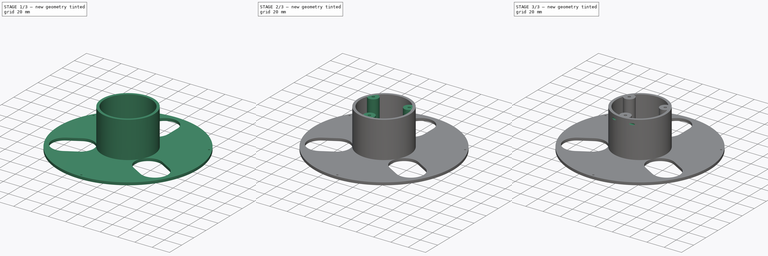
[diagram: build sequence overview — one tinted view per stage of 3, left to right]
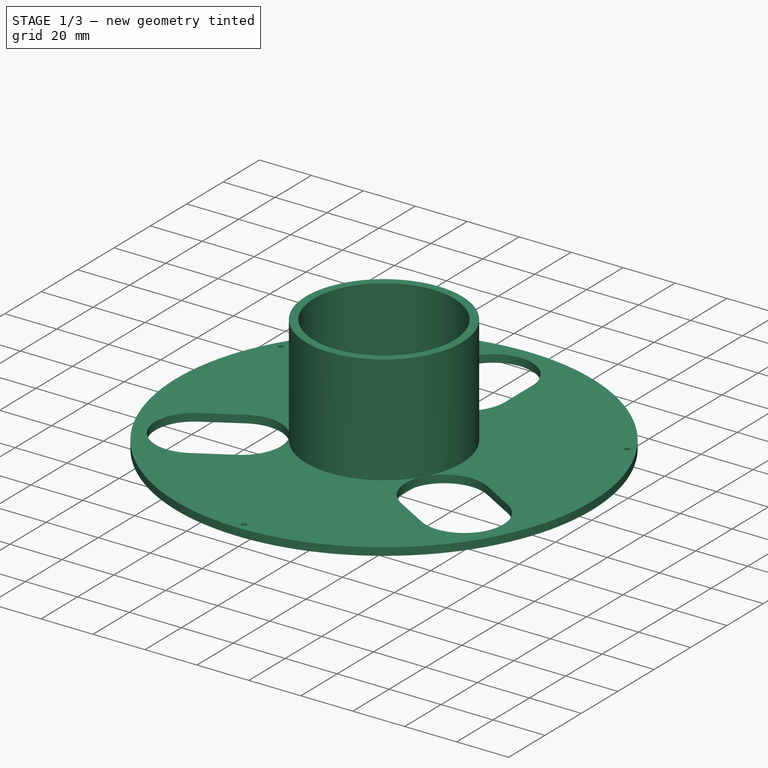
[diagram: stage 1 of 3 — iso view after this stage's code; geometry added in this stage tinted green]
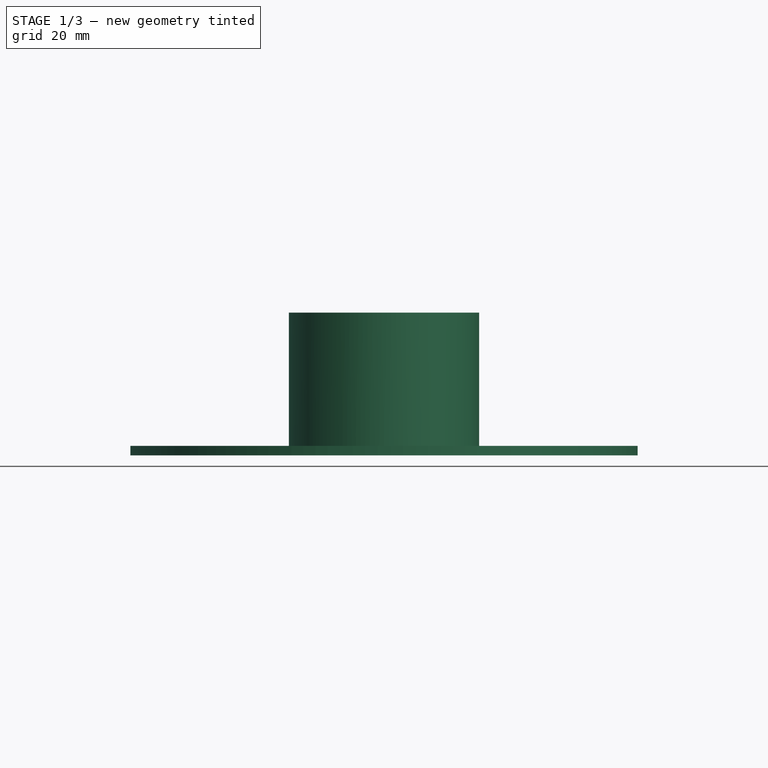
[diagram: stage 1 of 3 — front view after this stage's code; geometry added in this stage tinted green]
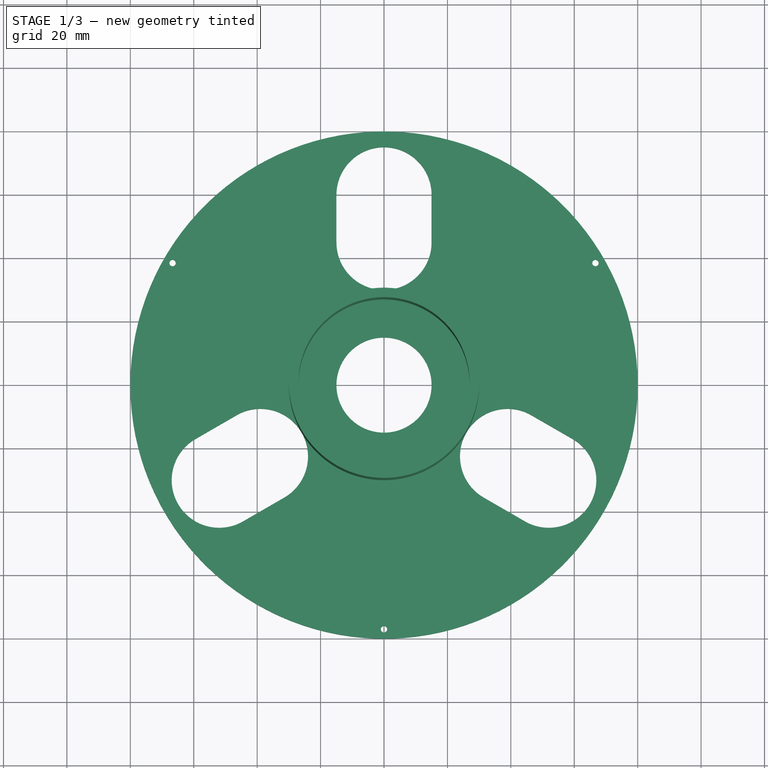
[diagram: stage 1 of 3 — top view after this stage's code; geometry added in this stage tinted green]
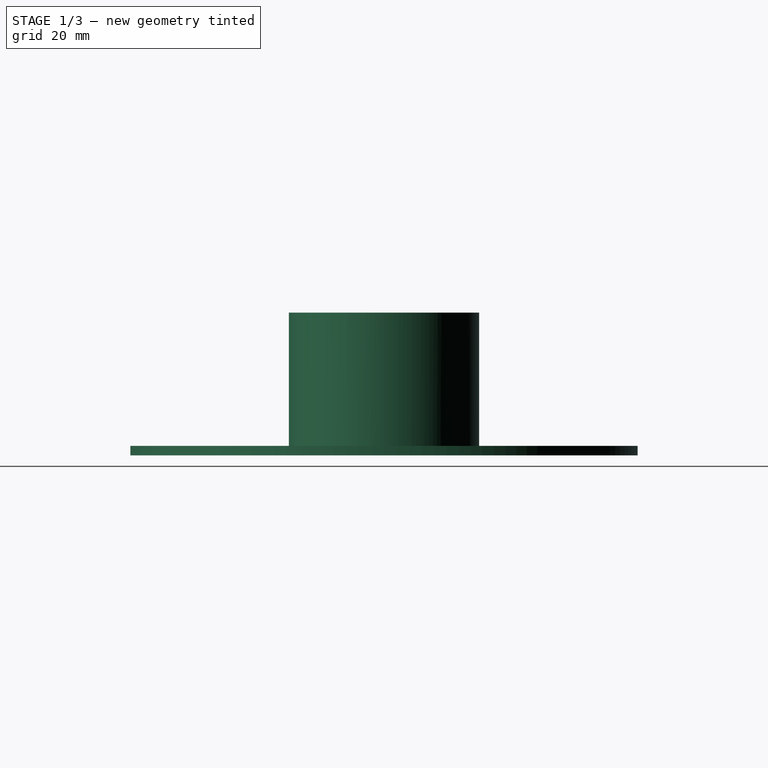
[diagram: stage 1 of 3 — right view after this stage's code; geometry added in this stage tinted green]
FCSTD DOCUMENT  (FreeCAD 0.18R14995 (Git))
Label: MiniSpoolHalf
License: All rights reserved
LicenseURL: http://en.wikipedia.org/wiki/All_rights_reserved
objects: Sketcher::SketchObject×6, PartDesign::Pad×3, PartDesign::Pocket×3, PartDesign::Body×1, App::Part×1
note: 19 computed .brp shape members not serialized (recipe doc carries the construction recipe); baked Part::Feature solids carry a one-line shape summary decoded from their .brp

FEATURE [Sketcher::SketchObject] Sketch001  label="SpoolCoreSketch"
  MapMode = 5
  Support = -> [XY_Plane001]
  sketch-geometry (2):
    g0: Circle CenterX=0 CenterY=0 CenterZ=0 NormalX=0 NormalY=0 NormalZ=1 AngleXU=0 Radius=30
    g1: Circle CenterX=0 CenterY=0 CenterZ=0 NormalX=0 NormalY=0 NormalZ=1 AngleXU=0 Radius=27
  constraints (4):
    c: Coincident(g0,g-1)
    c: Radius(g0) = 30
    c: Coincident(g1,g0)
    c: Radius(g1) = 27
FEATURE [Sketcher::SketchObject] Sketch  label="BaseSketch"
  ExternalGeometry = -> [Sketch001]
  MapMode = 5
  Support = -> [XY_Plane001]
  sketch-geometry (26):
    g0: Circle CenterX=0 CenterY=0 CenterZ=0 NormalX=0 NormalY=0 NormalZ=1 AngleXU=0 Radius=80
    g1: Circle CenterX=0 CenterY=0 CenterZ=0 NormalX=0 NormalY=0 NormalZ=1 AngleXU=0 Radius=15
    g2: LineSegment [constr] StartX=1e-12 StartY=80 StartZ=0 EndX=-69.282 EndY=-40 EndZ=0
    g3: LineSegment [constr] StartX=-69.282 StartY=-40 StartZ=0 EndX=69.282 EndY=-40 EndZ=0
    g4: LineSegment [constr] StartX=69.282 StartY=-40 StartZ=0 EndX=1e-12 EndY=80 EndZ=0
    g5: LineSegment [constr] StartX=0 StartY=0 StartZ=0 EndX=-69.282 EndY=-40 EndZ=0
    g6: LineSegment [constr] StartX=0 StartY=0 StartZ=0 EndX=1e-12 EndY=80 EndZ=0
    g7: LineSegment [constr] StartX=0 StartY=0 StartZ=0 EndX=69.282 EndY=-40 EndZ=0
    g8: ArcOfCircle CenterX=-2e-12 CenterY=45 CenterZ=0 NormalX=0 NormalY=0 NormalZ=1 AngleXU=0 Radius=15 StartAngle=3.14159 EndAngle=6.28319
    g9: ArcOfCircle CenterX=-1e-12 CenterY=60 CenterZ=0 NormalX=0 NormalY=0 NormalZ=1 AngleXU=0 Radius=15 StartAngle=0 EndAngle=3.14159
    g10: LineSegment StartX=15 StartY=45 StartZ=0 EndX=15 EndY=60 EndZ=0
    g11: LineSegment StartX=-15 StartY=45 StartZ=0 EndX=-15 EndY=60 EndZ=0
    g12: ArcOfCircle CenterX=-38.9711 CenterY=-22.5 CenterZ=0 NormalX=0 NormalY=0 NormalZ=1 AngleXU=0 Radius=15 StartAngle=5.23599 EndAngle=8.37758
    g13: ArcOfCircle CenterX=-51.9615 CenterY=-30 CenterZ=0 NormalX=0 NormalY=0 NormalZ=1 AngleXU=0 Radius=15 StartAngle=2.0944 EndAngle=5.23599
    g14: LineSegment StartX=-46.4711 StartY=-9.50962 StartZ=0 EndX=-59.4615 EndY=-17.0096 EndZ=0
    g15: LineSegment StartX=-31.4711 StartY=-35.4904 StartZ=0 EndX=-44.4615 EndY=-42.9904 EndZ=0
    g16: ArcOfCircle CenterX=38.9711 CenterY=-22.5 CenterZ=0 NormalX=0 NormalY=0 NormalZ=1 AngleXU=0 Radius=15 StartAngle=1.0472 EndAngle=4.18879
    g17: ArcOfCircle CenterX=51.9615 CenterY=-30 CenterZ=0 NormalX=0 NormalY=0 NormalZ=1 AngleXU=0 Radius=15 StartAngle=4.18879 EndAngle=7.33038
    g18: LineSegment StartX=31.4711 StartY=-35.4904 StartZ=0 EndX=44.4615 EndY=-42.9904 EndZ=0
    g19: LineSegment StartX=46.4711 StartY=-9.50962 StartZ=0 EndX=59.4615 EndY=-17.0096 EndZ=0
    g20: LineSegment [constr] StartX=0 StartY=0 StartZ=0 EndX=-69.282 EndY=40 EndZ=0
    g21: LineSegment [constr] StartX=0 StartY=0 StartZ=0 EndX=69.282 EndY=40 EndZ=0
    g22: LineSegment [constr] StartX=0 StartY=0 StartZ=0 EndX=-2e-12 EndY=-80 EndZ=0
    g23: Circle CenterX=-66.684 CenterY=38.5 CenterZ=0 NormalX=0 NormalY=0 NormalZ=1 AngleXU=0 Radius=1
    g24: Circle CenterX=66.684 CenterY=38.5 CenterZ=0 NormalX=0 NormalY=0 NormalZ=1 AngleXU=0 Radius=1
    g25: Circle CenterX=-1e-12 CenterY=-77 CenterZ=0 NormalX=0 NormalY=0 NormalZ=1 AngleXU=0 Radius=1
  constraints (67):
    c: Coincident(g0,g-1)
    c: Coincident(g1,g0)
    c: Radius(g0) = 80
    c: Radius(g1) = 15
    c: PointOnObject(g2,g0)
    c: PointOnObject(g2,g0)
    c: Coincident(g3,g2)
    c: PointOnObject(g3,g0)
    c: Coincident(g4,g3)
    c: Coincident(g4,g2)
    c: Equal(g2,g4)
    c: Equal(g4,g3)
    c: Horizontal(g3)
    c: Coincident(g5,g0)
    c: Coincident(g5,g2)
    c: Coincident(g6,g0)
    c: Coincident(g6,g2)
    c: Coincident(g7,g0)
    c: Coincident(g7,g3)
    c: Tangent(g8,g11) = 1.5708
    c: Tangent(g8,g10) = -1.5708
    c: Tangent(g10,g9) = -1.5708
    c: Tangent(g11,g9) = 1.5708
    c: Equal(g8,g9)
    c: PointOnObject(g8,g6)
    c: Tangent(g12,g15) = 1.5708
    c: Tangent(g12,g14) = -1.5708
    c: Tangent(g14,g13) = -1.5708
    c: Tangent(g15,g13) = 1.5708
    c: Equal(g12,g13)
    c: PointOnObject(g12,g5)
    c: PointOnObject(g13,g5)
    c: PointOnObject(g9,g6)
    c: Tangent(g16,g19) = 1.5708
    c: Tangent(g16,g18) = -1.5708
    c: Tangent(g18,g17) = -1.5708
    c: Tangent(g19,g17) = 1.5708
    c: Equal(g16,g17)
    c: PointOnObject(g16,g7)
    c: PointOnObject(g17,g7)
    c: Equal(g14,g11)
    c: Equal(g11,g19)
    c: Equal(g8,g16)
    c: Equal(g16,g12)
    c: Equal(g12,g1)
    c: Distance(g13,g2) = 20
    c: Distance(g9,g2) = 20
    c: Distance(g3,g17) = 20
    c: Tangent(g12,g-3)
    c: Coincident(g20,g0)
    c: PointOnObject(g20,g0)
    c: Parallel(g20,g7)
    c: Coincident(g21,g0)
    c: PointOnObject(g21,g0)
    c: Coincident(g22,g0)
    c: PointOnObject(g22,g0)
    c: Parallel(g5,g21)
    c: Parallel(g22,g6)
    c: PointOnObject(g23,g20)
    c: PointOnObject(g24,g21)
    c: PointOnObject(g25,g22)
    c: Distance(g25,g22) = 3
    c: Radius(g25) = 1
    c: Equal(g25,g23)
    c: Equal(g23,g24)
    c: Distance(g23,g20) = 3
    c: Distance(g24,g21) = 3
FEATURE [PartDesign::Pad] Pad  label="BasePad"
  Length = 3
  Length2 = 100
  Profile = -> Sketch
  Type = 0
FEATURE [PartDesign::Pad] Pad001  label="SpoolCorePad"
  BaseFeature = -> Pad
  Length = 45
  Length2 = 100
  Profile = -> Sketch001
  Type = 0
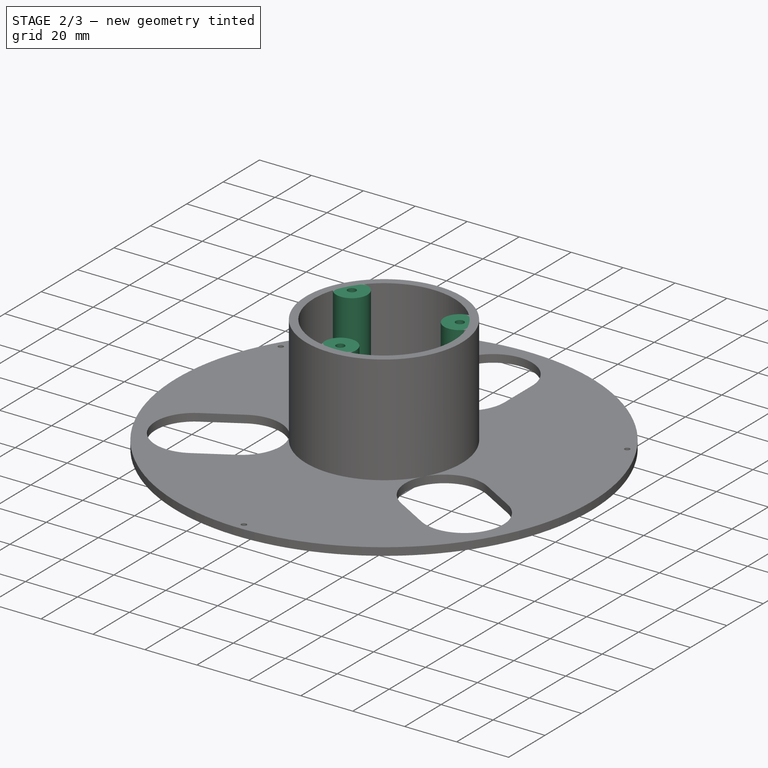
[diagram: stage 2 of 3 — iso view after this stage's code; geometry added in this stage tinted green]
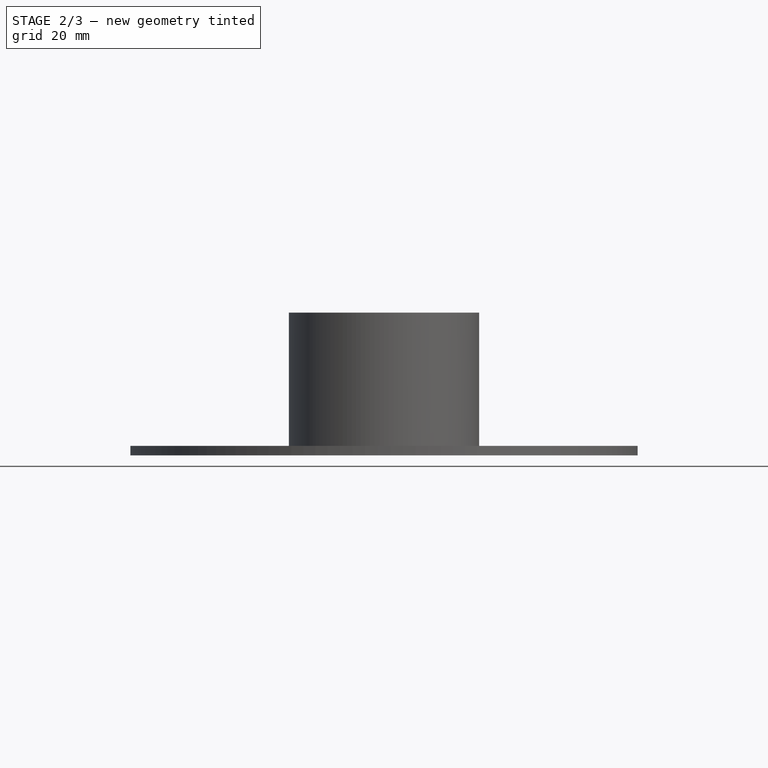
[diagram: stage 2 of 3 — front view after this stage's code; geometry added in this stage tinted green]
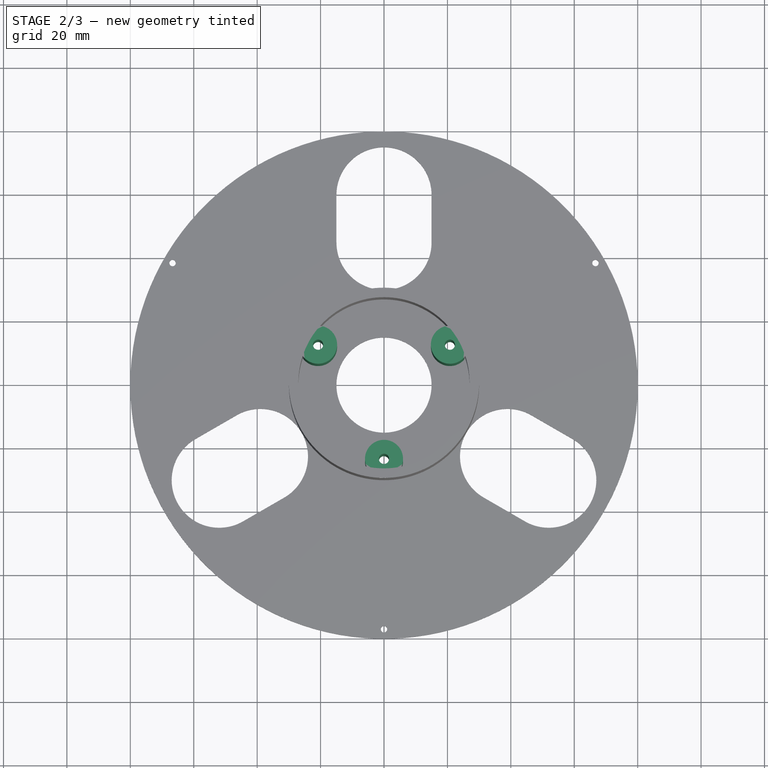
[diagram: stage 2 of 3 — top view after this stage's code; geometry added in this stage tinted green]
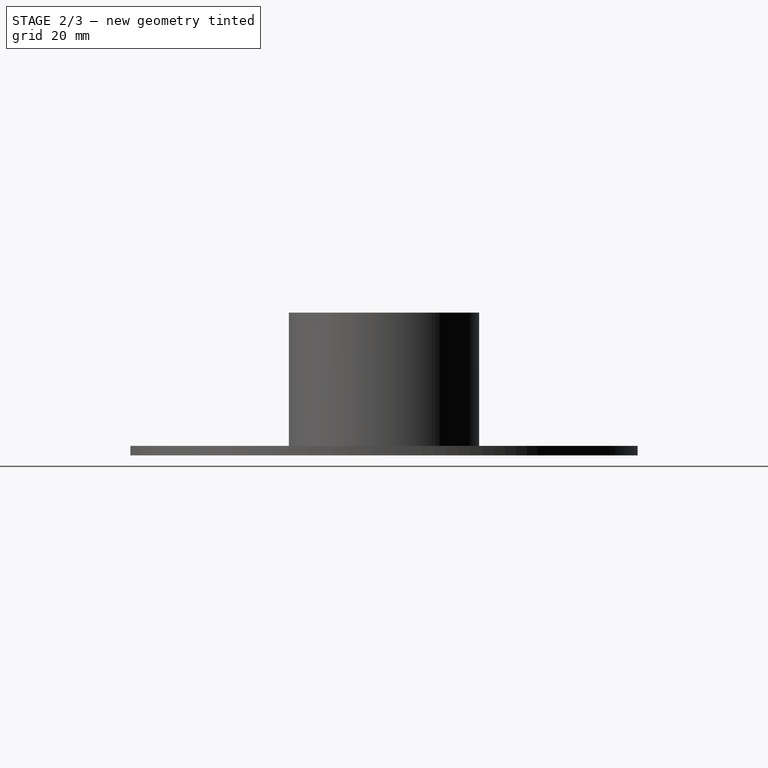
[diagram: stage 2 of 3 — right view after this stage's code; geometry added in this stage tinted green]
FEATURE [Sketcher::SketchObject] Sketch002  label="SpoolCoreClipSketch"
  ExternalGeometry = -> [Sketch001]
  MapMode = 5
  Support = -> [XY_Plane001]
  sketch-geometry (9):
    g0: LineSegment [constr] StartX=-23.3827 StartY=13.5 StartZ=0 EndX=23.3827 EndY=13.5 EndZ=0
    g1: LineSegment [constr] StartX=23.3827 StartY=13.5 StartZ=0 EndX=0 EndY=-27 EndZ=0
    g2: LineSegment [constr] StartX=0 StartY=-27 StartZ=0 EndX=-23.3827 EndY=13.5 EndZ=0
    g3: LineSegment [constr] StartX=0 StartY=0 StartZ=0 EndX=-23.3827 EndY=13.5 EndZ=0
    g4: LineSegment [constr] StartX=0 StartY=0 StartZ=0 EndX=23.3827 EndY=13.5 EndZ=0
    g5: LineSegment [constr] StartX=0 StartY=0 StartZ=0 EndX=0 EndY=-27 EndZ=0
    g6: Circle CenterX=-20.7846 CenterY=12 CenterZ=0 NormalX=0 NormalY=0 NormalZ=1 AngleXU=0 Radius=6
    g7: Circle CenterX=0 CenterY=-24 CenterZ=0 NormalX=0 NormalY=0 NormalZ=1 AngleXU=0 Radius=6
    g8: Circle CenterX=20.7846 CenterY=12 CenterZ=0 NormalX=0 NormalY=0 NormalZ=1 AngleXU=0 Radius=6
  constraints (24):
    c: PointOnObject(g0,g-3)
    c: PointOnObject(g0,g-3)
    c: Horizontal(g0)
    c: Coincident(g1,g0)
    c: PointOnObject(g1,g-3)
    c: Coincident(g2,g1)
    c: Coincident(g2,g0)
    c: Equal(g1,g2)
    c: Equal(g2,g0)
    c: Coincident(g3,g-1)
    c: Coincident(g3,g0)
    c: Coincident(g4,g-1)
    c: Coincident(g4,g0)
    c: Coincident(g5,g-1)
    c: Coincident(g5,g1)
    c: PointOnObject(g6,g3)
    c: Tangent(g6,g-4)
    c: PointOnObject(g7,g5)
    c: Tangent(g7,g-4)
    c: PointOnObject(g8,g4)
    c: Tangent(g8,g-4)
    c: Equal(g8,g6)
    c: Equal(g6,g7)
    c: Radius(g6) = 6
FEATURE [PartDesign::Pad] Pad002  label="SpoolCoreClipPad"
  BaseFeature = -> Pad001
  Length = 45
  Length2 = 100
  Profile = -> Sketch002
  Type = 0
FEATURE [Sketcher::SketchObject] Sketch003  label="SpoolCoreScrewCapsSketch"
  ExternalGeometry = -> [Sketch002]
  MapMode = 5
  Support = -> [XY_Plane001]
  sketch-geometry (3):
    g0: Circle CenterX=-20.7846 CenterY=12 CenterZ=0 NormalX=0 NormalY=0 NormalZ=1 AngleXU=0 Radius=4
    g1: Circle CenterX=20.7846 CenterY=12 CenterZ=0 NormalX=0 NormalY=0 NormalZ=1 AngleXU=0 Radius=4
    g2: Circle CenterX=0 CenterY=-24 CenterZ=0 NormalX=0 NormalY=0 NormalZ=1 AngleXU=0 Radius=4
  constraints (6):
    c: Coincident(g0,g-6)
    c: Coincident(g1,g-3)
    c: Coincident(g2,g-4)
    c: Equal(g2,g1)
    c: Equal(g1,g0)
    c: Radius(g0) = 4
FEATURE [Sketcher::SketchObject] Sketch004  label="SpoolCoreScrewsSketch"
  ExternalGeometry = -> [Sketch003]
  MapMode = 5
  Support = -> [XY_Plane001]
  sketch-geometry (3):
    g0: Circle CenterX=-20.7846 CenterY=12 CenterZ=0 NormalX=0 NormalY=0 NormalZ=1 AngleXU=0 Radius=1.6
    g1: Circle CenterX=20.7846 CenterY=12 CenterZ=0 NormalX=0 NormalY=0 NormalZ=1 AngleXU=0 Radius=1.6
    g2: Circle CenterX=0 CenterY=-24 CenterZ=0 NormalX=0 NormalY=0 NormalZ=1 AngleXU=0 Radius=1.6
  constraints (6):
    c: Coincident(g0,g-5)
    c: Coincident(g1,g-3)
    c: Coincident(g2,g-4)
    c: Equal(g2,g1)
    c: Equal(g1,g0)
    c: Radius(g0) = 1.6
FEATURE [PartDesign::Pocket] Pocket  label="SpoolCoreScrewsPocket"
  BaseFeature = -> Pad002
  Length = 5
  Length2 = 100
  Profile = -> Sketch004
  Reversed = true
  Type = 1
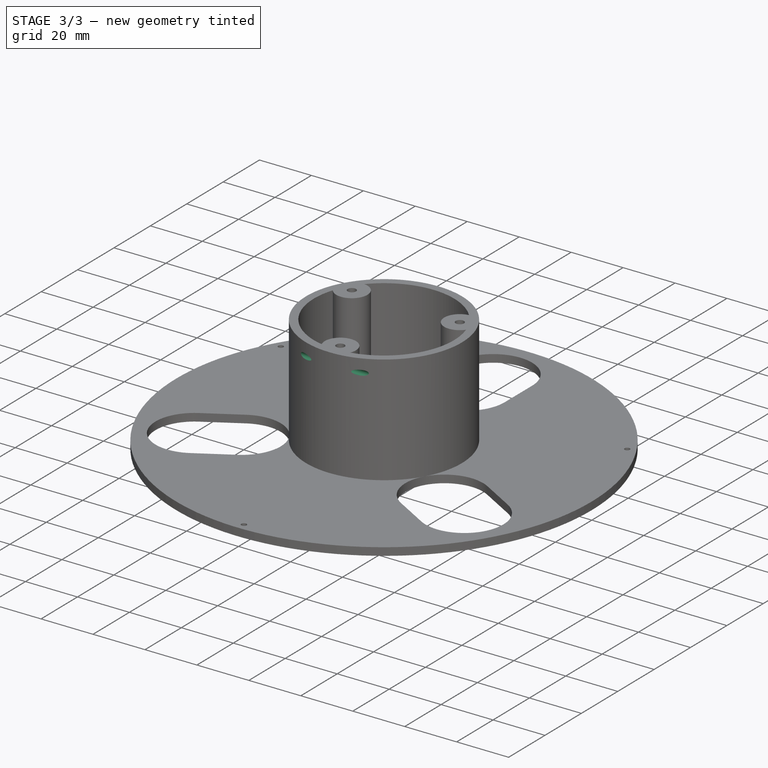
[diagram: stage 3 of 3 — iso view after this stage's code; geometry added in this stage tinted green]
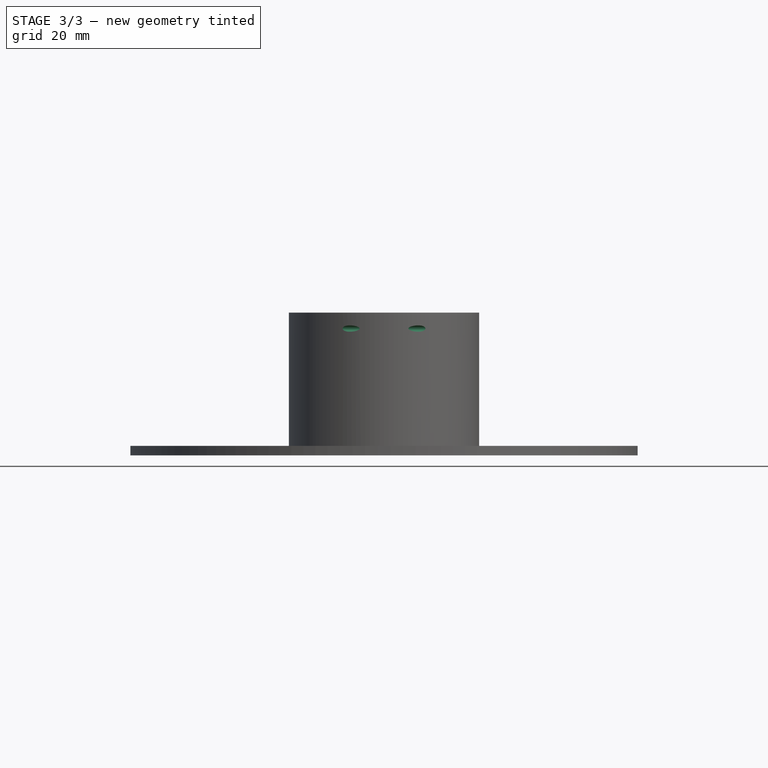
[diagram: stage 3 of 3 — front view after this stage's code; geometry added in this stage tinted green]
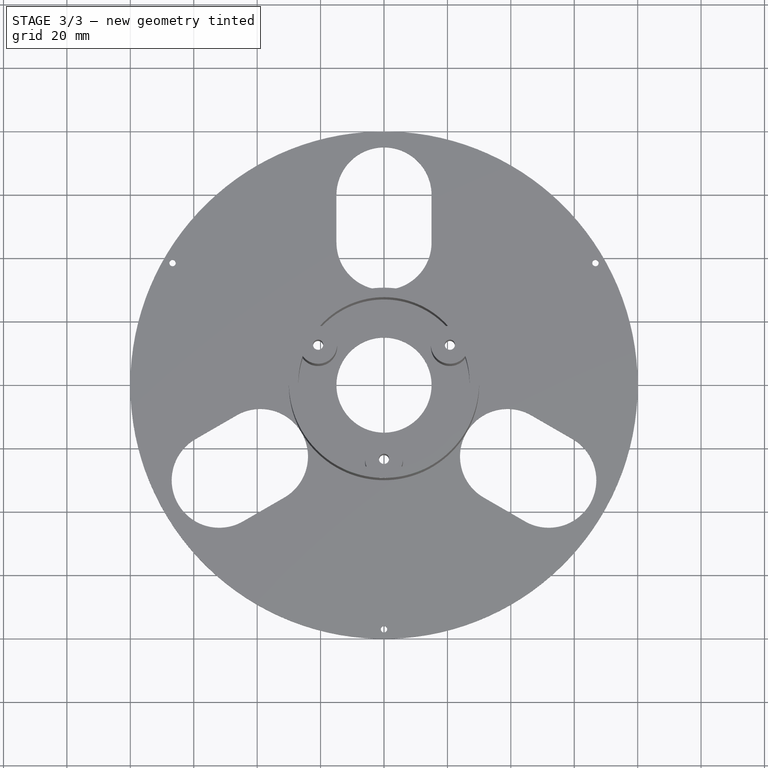
[diagram: stage 3 of 3 — top view after this stage's code; geometry added in this stage tinted green]
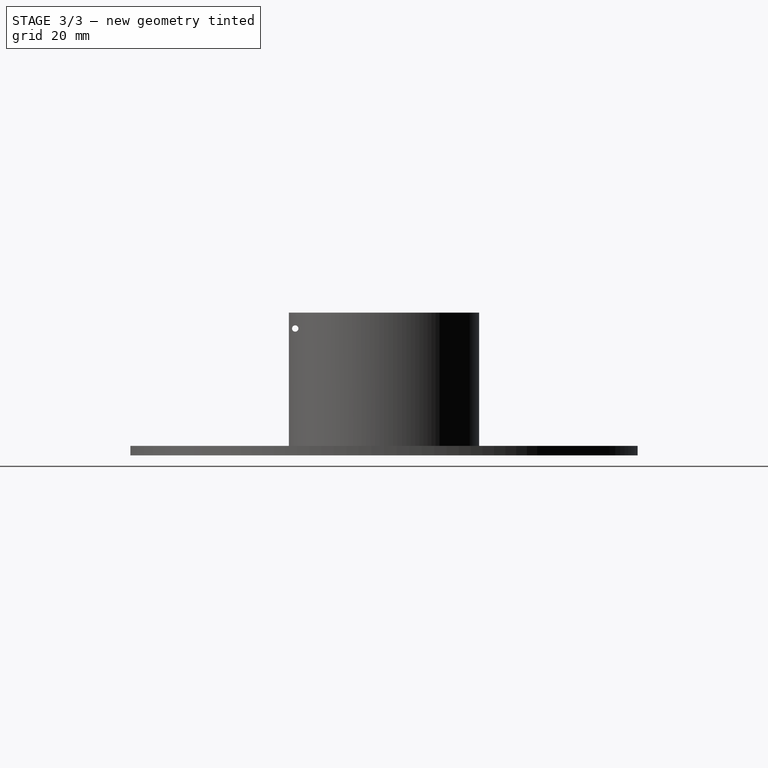
[diagram: stage 3 of 3 — right view after this stage's code; geometry added in this stage tinted green]
FEATURE [PartDesign::Pocket] Pocket001  label="SpoolCoreScrewCapsPocket"
  BaseFeature = -> Pocket
  Length = 20
  Length2 = 100
  Profile = -> Sketch003
  Reversed = true
  Type = 0
FEATURE [Sketcher::SketchObject] Sketch005  label="FilamentClipSketch"
  ExternalGeometry = -> [Pocket001]
  MapMode = 5
  Placement = pos=(0,0,0) rot=(0.57735,0.57735,0.57735;2.0944rad)
  Support = -> [YZ_Plane001]
  sketch-geometry (5):
    g0: Circle CenterX=-28 CenterY=40 CenterZ=0 NormalX=0 NormalY=0 NormalZ=1 AngleXU=0 Radius=1
    g1: LineSegment [constr] StartX=-30 StartY=45 StartZ=0 EndX=-28 EndY=45 EndZ=0
    g2: LineSegment [constr] StartX=-28 StartY=45 StartZ=0 EndX=-28 EndY=40 EndZ=0
    g3: LineSegment [constr] StartX=-28 StartY=40 StartZ=0 EndX=-30 EndY=40 EndZ=0
    g4: LineSegment [constr] StartX=-30 StartY=40 StartZ=0 EndX=-30 EndY=45 EndZ=0
  constraints (13):
    c: Coincident(g1,g2)
    c: Coincident(g2,g3)
    c: Coincident(g3,g4)
    c: Coincident(g4,g1)
    c: Horizontal(g1)
    c: Horizontal(g3)
    c: Vertical(g2)
    c: Vertical(g4)
    c: Coincident(g1,g-3)
    c: Coincident(g2,g0)
    c: Distance(g3) = 2
    c: Distance(g4) = 5
    c: Radius(g0) = 1
FEATURE [PartDesign::Pocket] Pocket002  label="FilamentClipPocket"
  BaseFeature = -> Pocket001
  Length = 5
  Length2 = 100
  Midplane = true
  Profile = -> Sketch005
  Type = 1
FEATURE [PartDesign::Body] Body  label="SpoolHalfBody"
  Group = -> [Sketch,Pad,Sketch001,Pad001,Sketch002,Pad002,Sketch003,Sketch004,Pocket,Pocket001,Sketch005,Pocket002]
  Origin = -> Origin001
  Tip = -> Pocket002
FEATURE [App::Part] Part  label="SpoolHalfPart"
  Group = -> [Body]
  License = CC BY 3.0
  LicenseURL = http://creativecommons.org/licenses/by/3.0/
  Origin = -> Origin
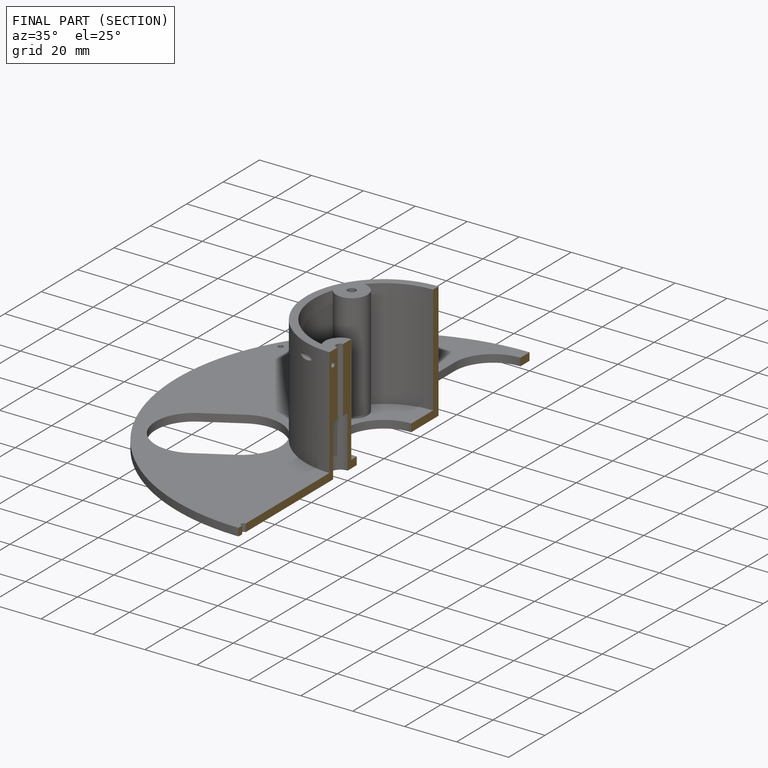
[diagram: finished part — half-section view (interior)]
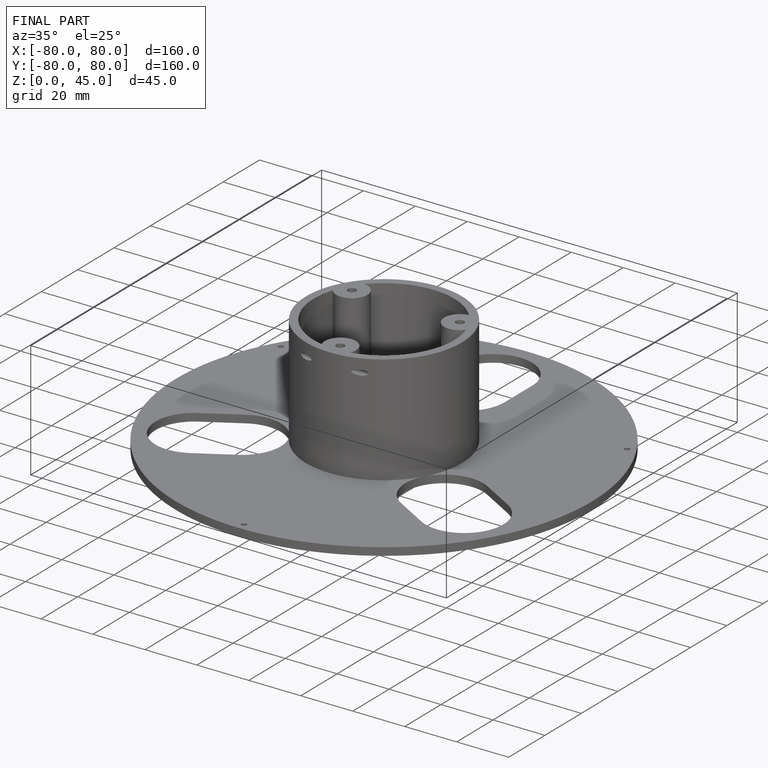
[diagram: finished part — iso view with bounding-box wireframe]
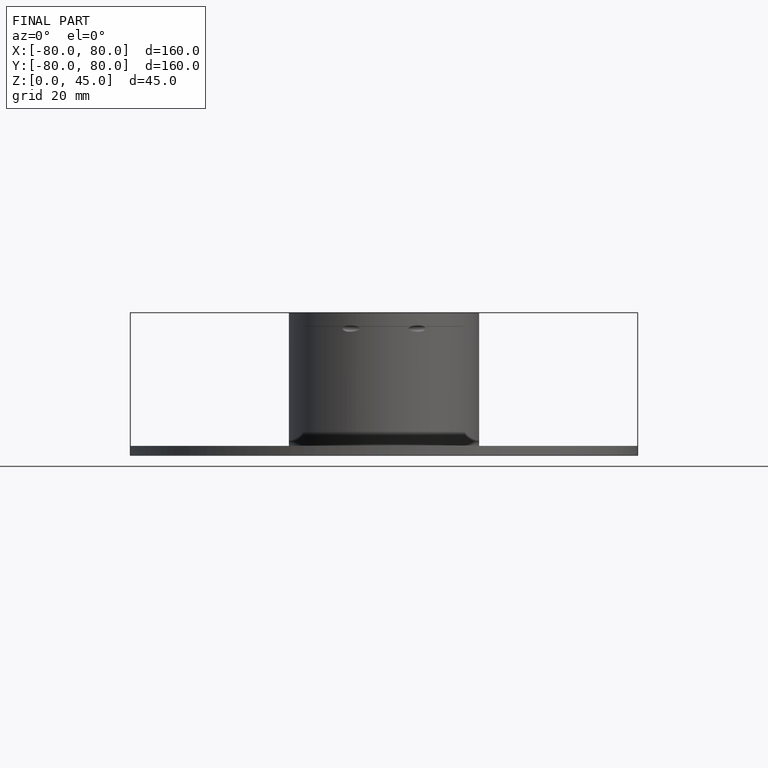
[diagram: finished part — front view with bounding-box wireframe]
